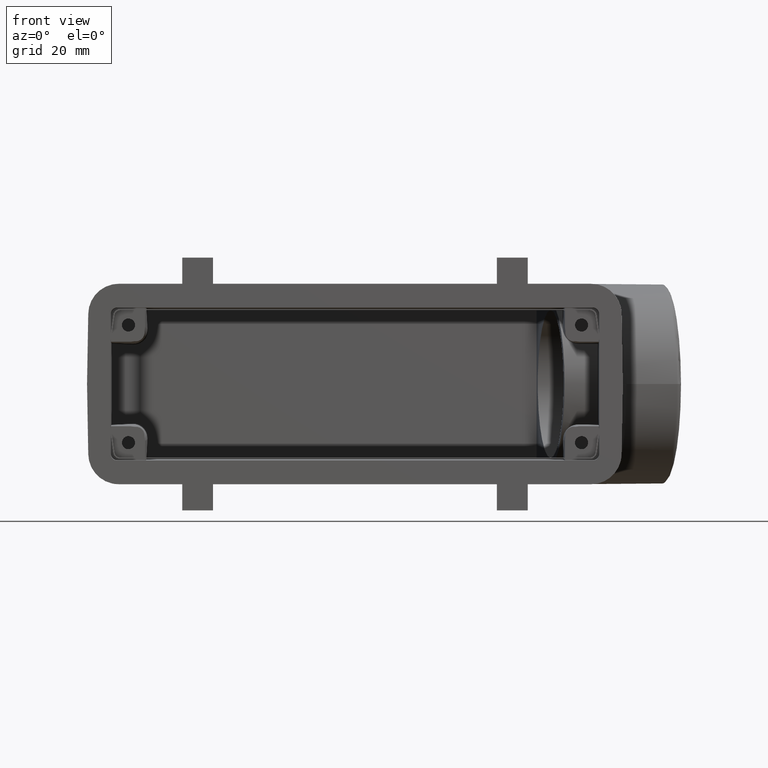
[diagram: clean part render]
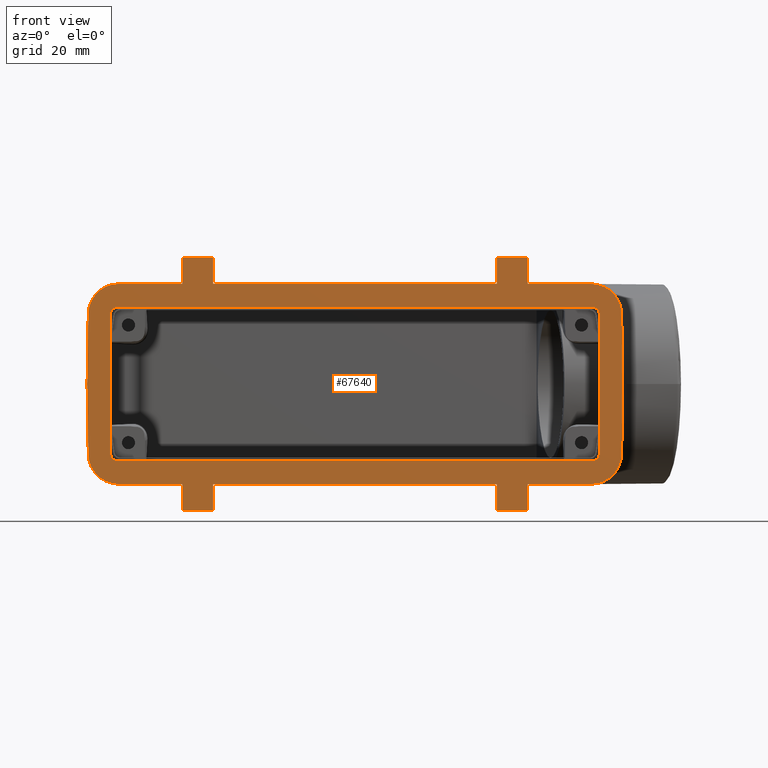
[diagram: same view with one face highlighted and labeled with its STEP entity id]
A machine part, front view. The second image highlights one B-rep face of the part: STEP entity #67640.
In plain terms, the highlighted planar face has unit normal (0, -1, 0).
Its self-contained STEP definition (entity closure, byte-faithful):
#8580=CARTESIAN_POINT('',(58.4720845133749,24.1117412440545,
16.122166845061));
#8590=VERTEX_POINT('',#8580);
#8760=CARTESIAN_POINT('',(58.753497982439,24.1117412440545,
4.20462067438672E-13));
#8770=VERTEX_POINT('',#8760);
#8800=CARTESIAN_POINT('',(58.753497982439,24.1117412440545,0.));
#8810=DIRECTION('',(-0.0174524064372835,0.,0.999847695156391));
#8820=VECTOR('',#8810,1.);
#8830=LINE('',#8800,#8820);
#8840=EDGE_CURVE('',#8770,#8590,#8830,.T.);
#10190=CARTESIAN_POINT('',(53.3275773240349,24.1117412440545,
16.0741364569997));
#10200=VERTEX_POINT('',#10190);
#10230=CARTESIAN_POINT('',(53.3275773240349,24.1117412440545,0.));
#10240=DIRECTION('',(-1.06873307065347E-18,0.,-1.));
#10250=VECTOR('',#10240,1.);
#10260=LINE('',#10230,#10250);
#10270=CARTESIAN_POINT('',(53.3275773240349,24.1117412440545,
-16.0741364569997));
#10280=VERTEX_POINT('',#10270);
#10290=EDGE_CURVE('',#10200,#10280,#10260,.T.);
#11820=CARTESIAN_POINT('',(-35.3355784279219,24.1117412440545,0.));
#11830=DIRECTION('',(-0.,0.,-1.));
#11840=VECTOR('',#11830,1.);
#11850=LINE('',#11820,#11840);
#11860=CARTESIAN_POINT('',(-35.3355784279219,24.1117412440545,-23.));
#11870=VERTEX_POINT('',#11860);
#11880=CARTESIAN_POINT('',(-35.3355784279219,24.1117412440545,-29.));
#11890=VERTEX_POINT('',#11880);
#11900=EDGE_CURVE('',#11870,#11890,#11850,.T.);
#12350=CARTESIAN_POINT('',(-64.246502017561,24.1117412440545,
-5.14730234735774E-13));
#12360=VERTEX_POINT('',#12350);
#13310=CARTESIAN_POINT('',(-63.9650885484969,24.1117412440545,
16.122166845061));
#13320=VERTEX_POINT('',#13310);
#13350=CARTESIAN_POINT('',(-64.246502017561,24.1117412440545,0.));
#13360=DIRECTION('',(0.0174524064372835,0.,0.999847695156391));
#13370=VECTOR('',#13360,1.);
#13380=LINE('',#13350,#13370);
#13390=EDGE_CURVE('',#12360,#13320,#13380,.T.);
#27540=CARTESIAN_POINT('',(-57.3206384745607,24.1117412440545,
-17.574079341596));
#27550=VERTEX_POINT('',#27540);
#27580=CARTESIAN_POINT('',(-57.3205242415783,24.1117412440545,
-16.0740222240174));
#27590=DIRECTION('',(-0.,-1.,-0.));
#27600=DIRECTION('',(-0.707106781185974,0.,-0.707106781187121));
#27610=AXIS2_PLACEMENT_3D('',#27580,#27590,#27600);
#27620=ELLIPSE('',#27610,1.50011423298243,1.5);
#27630=CARTESIAN_POINT('',(-58.8205813591569,24.1117412440545,
-16.0741364569997));
#27640=VERTEX_POINT('',#27630);
#27650=EDGE_CURVE('',#27640,#27550,#27620,.T.);
#29320=CARTESIAN_POINT('',(29.8425743927999,24.1117412440545,-23.));
#29330=VERTEX_POINT('',#29320);
#29360=CARTESIAN_POINT('',(29.8425743927999,24.1117412440545,0.));
#29370=DIRECTION('',(0.,0.,1.));
#29380=VECTOR('',#29370,1.);
#29390=LINE('',#29360,#29380);
#29400=CARTESIAN_POINT('',(29.8425743927999,24.1117412440545,-29.));
#29410=VERTEX_POINT('',#29400);
#29420=EDGE_CURVE('',#29410,#29330,#29390,.T.);
#29660=CARTESIAN_POINT('',(-64.246502017561,24.1117412440545,0.));
#29670=DIRECTION('',(0.0174524064372835,0.,-0.999847695156391));
#29680=VECTOR('',#29670,1.);
#29690=LINE('',#29660,#29680);
#29700=CARTESIAN_POINT('',(-63.9650885484969,24.1117412440545,
-16.122166845061));
#29710=VERTEX_POINT('',#29700);
#29720=EDGE_CURVE('',#12360,#29710,#29690,.T.);
#36230=CARTESIAN_POINT('',(58.753497982439,24.1117412440545,0.));
#36240=DIRECTION('',(-0.0174524064372835,0.,-0.999847695156391));
#36250=VECTOR('',#36240,1.);
#36260=LINE('',#36230,#36250);
#36270=CARTESIAN_POINT('',(58.4720845133749,24.1117412440545,
-16.122166845061));
#36280=VERTEX_POINT('',#36270);
#36290=EDGE_CURVE('',#8770,#36280,#36260,.T.);
#46250=CARTESIAN_POINT('',(-56.9661546824022,24.1117412440545,23.));
#46260=VERTEX_POINT('',#46250);
#46290=CARTESIAN_POINT('',(-56.9661546824022,24.1117412440545,16.));
#46300=DIRECTION('',(0.,-1.,2.44929359829471E-16));
#46310=DIRECTION('',(1.,-3.67335203465356E-48,-1.49975978266186E-32));
#46320=AXIS2_PLACEMENT_3D('',#46290,#46300,#46310);
#46330=CIRCLE('',#46320,7.);
#46340=EDGE_CURVE('',#46260,#13320,#46330,.T.);
#52520=CARTESIAN_POINT('',(29.8425743927999,24.1117412440545,23.));
#52530=VERTEX_POINT('',#52520);
#52560=CARTESIAN_POINT('',(45.6034979824379,24.1117412440545,23.));
#52570=DIRECTION('',(1.,0.,-0.));
#52580=VECTOR('',#52570,1.);
#52590=LINE('',#52560,#52580);
#52600=CARTESIAN_POINT('',(-35.3355784279219,24.1117412440545,23.));
#52610=VERTEX_POINT('',#52600);
#52620=EDGE_CURVE('',#52610,#52530,#52590,.T.);
#52750=CARTESIAN_POINT('',(-42.396502017561,24.1117412440545,23.));
#52760=VERTEX_POINT('',#52750);
#52790=EDGE_CURVE('',#46260,#52760,#52590,.T.);
#53040=CARTESIAN_POINT('',(51.4731506472802,24.1117412440545,23.));
#53050=VERTEX_POINT('',#53040);
#53080=CARTESIAN_POINT('',(36.903497982439,24.1117412440545,23.));
#53090=VERTEX_POINT('',#53080);
#53100=EDGE_CURVE('',#53090,#53050,#52590,.T.);
#59470=CARTESIAN_POINT('',(36.903497982439,24.1117412440545,-23.));
#59480=VERTEX_POINT('',#59470);
#59560=CARTESIAN_POINT('',(36.903497982439,24.1117412440545,-29.));
#59570=VERTEX_POINT('',#59560);
#59600=CARTESIAN_POINT('',(36.903497982439,24.1117412440545,0.));
#59610=DIRECTION('',(0.,0.,-1.));
#59620=VECTOR('',#59610,1.);
#59630=LINE('',#59600,#59620);
#59640=EDGE_CURVE('',#59480,#59570,#59630,.T.);
#59870=CARTESIAN_POINT('',(-57.3206384745607,24.1117412440545,
17.5740793415959));
#59880=VERTEX_POINT('',#59870);
#60040=CARTESIAN_POINT('',(-58.8205813591569,24.1117412440545,
16.0741364569997));
#60050=VERTEX_POINT('',#60040);
#60080=CARTESIAN_POINT('',(-57.3205242415783,24.1117412440545,
16.0740222240173));
#60090=DIRECTION('',(-0.,-1.,-0.));
#60100=DIRECTION('',(0.707106781185979,0.,-0.707106781187116));
#60110=AXIS2_PLACEMENT_3D('',#60080,#60090,#60100);
#60120=ELLIPSE('',#60110,1.50011423298243,1.5);
#60130=EDGE_CURVE('',#59880,#60050,#60120,.T.);
#60320=CARTESIAN_POINT('',(45.6034979824379,24.1117412440545,-29.));
#60330=DIRECTION('',(-1.,0.,-0.));
#60340=VECTOR('',#60330,1.);
#60350=LINE('',#60320,#60340);
#60360=EDGE_CURVE('',#59570,#29410,#60350,.T.);
#65560=CARTESIAN_POINT('',(45.6034979824379,24.1117412440545,-23.));
#65570=DIRECTION('',(1.,0.,0.));
#65580=VECTOR('',#65570,1.);
#65590=LINE('',#65560,#65580);
#65600=EDGE_CURVE('',#11870,#29330,#65590,.T.);
#65650=CARTESIAN_POINT('',(51.4731506472802,24.1117412440545,-23.));
#65660=VERTEX_POINT('',#65650);
#65670=EDGE_CURVE('',#59480,#65660,#65590,.T.);
#65980=CARTESIAN_POINT('',(-56.9661546824022,24.1117412440545,-23.));
#65990=VERTEX_POINT('',#65980);
#66020=CARTESIAN_POINT('',(-42.396502017561,24.1117412440545,-23.));
#66030=VERTEX_POINT('',#66020);
#66040=EDGE_CURVE('',#65990,#66030,#65590,.T.);
#66220=CARTESIAN_POINT('',(-38.8660402227414,24.1117412440545,-26.));
#66230=DIRECTION('',(-0.,-1.,-0.));
#66240=DIRECTION('',(-1.,0.,0.));
#66250=AXIS2_PLACEMENT_3D('',#66220,#66230,#66240);
#66260=PLANE('',#66250);
#66270=CARTESIAN_POINT('',(45.6034979824379,24.1117412440545,
-17.574079341596));
#66280=DIRECTION('',(-1.,0.,-1.06873307065349E-18));
#66290=VECTOR('',#66280,1.);
#66300=LINE('',#66270,#66290);
#66310=CARTESIAN_POINT('',(51.8276344394387,24.1117412440545,
-17.574079341596));
#66320=VERTEX_POINT('',#66310);
#66330=EDGE_CURVE('',#66320,#27550,#66300,.T.);
#66340=ORIENTED_EDGE('',*,*,#66330,.T.);
#66350=CARTESIAN_POINT('',(51.8275202064563,24.1117412440545,
-16.0740222240173));
#66360=DIRECTION('',(-0.,-1.,-0.));
#66370=DIRECTION('',(0.707106781185959,0.,-0.707106781187136));
#66380=AXIS2_PLACEMENT_3D('',#66350,#66360,#66370);
#66390=ELLIPSE('',#66380,1.50011423298243,1.5);
#66400=EDGE_CURVE('',#66320,#10280,#66390,.T.);
#66410=ORIENTED_EDGE('',*,*,#66400,.F.);
#66420=ORIENTED_EDGE('',*,*,#10290,.T.);
#66430=CARTESIAN_POINT('',(51.8275202064563,24.1117412440545,
16.0740222240173));
#66440=DIRECTION('',(-0.,-1.,-0.));
#66450=DIRECTION('',(-0.707106781185974,0.,-0.707106781187121));
#66460=AXIS2_PLACEMENT_3D('',#66430,#66440,#66450);
#66470=ELLIPSE('',#66460,1.50011423298243,1.5);
#66480=CARTESIAN_POINT('',(51.8276344394387,24.1117412440545,
17.5740793415959));
#66490=VERTEX_POINT('',#66480);
#66500=EDGE_CURVE('',#10200,#66490,#66470,.T.);
#66510=ORIENTED_EDGE('',*,*,#66500,.F.);
#66520=CARTESIAN_POINT('',(45.6034979824379,24.1117412440545,
17.5740793415959));
#66530=DIRECTION('',(-1.,0.,1.49975978266186E-32));
#66540=VECTOR('',#66530,1.);
#66550=LINE('',#66520,#66540);
#66560=EDGE_CURVE('',#66490,#59880,#66550,.T.);
#66570=ORIENTED_EDGE('',*,*,#66560,.F.);
#66580=ORIENTED_EDGE('',*,*,#60130,.F.);
#66590=CARTESIAN_POINT('',(-58.8205813591569,24.1117412440545,0.));
#66600=DIRECTION('',(0.,0.,1.));
#66610=VECTOR('',#66600,1.);
#66620=LINE('',#66590,#66610);
#66630=EDGE_CURVE('',#27640,#60050,#66620,.T.);
#66640=ORIENTED_EDGE('',*,*,#66630,.T.);
#66650=ORIENTED_EDGE('',*,*,#27650,.F.);
#66660=EDGE_LOOP('',(#66650,#66640,#66580,#66570,#66510,#66420,#66410,
#66340));
#66670=FACE_BOUND('',#66660,.T.);
#66680=CARTESIAN_POINT('',(51.4731506472802,24.1117412440545,16.));
#66690=DIRECTION('',(-2.13762893932512E-18,-1.,2.44929359829471E-16));
#66700=DIRECTION('',(1.,-2.13762893932512E-18,-1.44740297389567E-32));
#66710=AXIS2_PLACEMENT_3D('',#66680,#66690,#66700);
#66720=CIRCLE('',#66710,7.);
#66730=EDGE_CURVE('',#8590,#53050,#66720,.T.);
#66740=ORIENTED_EDGE('',*,*,#66730,.T.);
#66750=ORIENTED_EDGE('',*,*,#8840,.T.);
#66760=ORIENTED_EDGE('',*,*,#36290,.F.);
#66770=CARTESIAN_POINT('',(51.4731506472802,24.1117412440545,-16.));
#66780=DIRECTION('',(1.2460230885406E-16,1.,0.));
#66790=DIRECTION('',(1.,-1.2460230885406E-16,0.));
#66800=AXIS2_PLACEMENT_3D('',#66770,#66780,#66790);
#66810=CIRCLE('',#66800,7.);
#66820=EDGE_CURVE('',#36280,#65660,#66810,.T.);
#66830=ORIENTED_EDGE('',*,*,#66820,.F.);
#66840=ORIENTED_EDGE('',*,*,#65670,.T.);
#66850=ORIENTED_EDGE('',*,*,#59640,.F.);
#66860=ORIENTED_EDGE('',*,*,#60360,.F.);
#66870=ORIENTED_EDGE('',*,*,#29420,.F.);
#66880=ORIENTED_EDGE('',*,*,#65600,.T.);
#66890=ORIENTED_EDGE('',*,*,#11900,.F.);
#66900=CARTESIAN_POINT('',(45.6034979824379,24.1117412440545,-29.));
#66910=DIRECTION('',(-1.,0.,-0.));
#66920=VECTOR('',#66910,1.);
#66930=LINE('',#66900,#66920);
#66940=CARTESIAN_POINT('',(-42.396502017561,24.1117412440545,-29.));
#66950=VERTEX_POINT('',#66940);
#66960=EDGE_CURVE('',#11890,#66950,#66930,.T.);
#66970=ORIENTED_EDGE('',*,*,#66960,.F.);
#66980=CARTESIAN_POINT('',(-42.396502017561,24.1117412440545,0.));
#66990=DIRECTION('',(0.,0.,1.));
#67000=VECTOR('',#66990,1.);
#67010=LINE('',#66980,#67000);
#67020=EDGE_CURVE('',#66950,#66030,#67010,.T.);
#67030=ORIENTED_EDGE('',*,*,#67020,.F.);
#67040=ORIENTED_EDGE('',*,*,#66040,.T.);
#67050=CARTESIAN_POINT('',(-56.9661546824022,24.1117412440545,-16.));
#67060=DIRECTION('',(1.22464679914735E-16,1.,0.));
#67070=DIRECTION('',(1.,-1.22464679914735E-16,0.));
#67080=AXIS2_PLACEMENT_3D('',#67050,#67060,#67070);
#67090=CIRCLE('',#67080,7.);
#67100=EDGE_CURVE('',#65990,#29710,#67090,.T.);
#67110=ORIENTED_EDGE('',*,*,#67100,.F.);
#67120=ORIENTED_EDGE('',*,*,#29720,.T.);
#67130=ORIENTED_EDGE('',*,*,#13390,.F.);
#67140=ORIENTED_EDGE('',*,*,#46340,.T.);
#67150=ORIENTED_EDGE('',*,*,#52790,.F.);
#67160=CARTESIAN_POINT('',(-42.396502017561,24.1117412440545,0.));
#67170=DIRECTION('',(0.,0.,1.));
#67180=VECTOR('',#67170,1.);
#67190=LINE('',#67160,#67180);
#67200=CARTESIAN_POINT('',(-42.396502017561,24.1117412440545,29.));
#67210=VERTEX_POINT('',#67200);
#67220=EDGE_CURVE('',#52760,#67210,#67190,.T.);
#67230=ORIENTED_EDGE('',*,*,#67220,.F.);
#67240=CARTESIAN_POINT('',(45.6034979824379,24.1117412440545,29.));
#67250=DIRECTION('',(-1.,0.,-0.));
#67260=VECTOR('',#67250,1.);
#67270=LINE('',#67240,#67260);
#67280=CARTESIAN_POINT('',(-35.3355784279219,24.1117412440545,29.));
#67290=VERTEX_POINT('',#67280);
#67300=EDGE_CURVE('',#67290,#67210,#67270,.T.);
#67310=ORIENTED_EDGE('',*,*,#67300,.T.);
#67320=CARTESIAN_POINT('',(-35.3355784279219,24.1117412440545,0.));
#67330=DIRECTION('',(-0.,0.,-1.));
#67340=VECTOR('',#67330,1.);
#67350=LINE('',#67320,#67340);
#67360=EDGE_CURVE('',#67290,#52610,#67350,.T.);
#67370=ORIENTED_EDGE('',*,*,#67360,.F.);
#67380=ORIENTED_EDGE('',*,*,#52620,.F.);
#67390=CARTESIAN_POINT('',(29.8425743927999,24.1117412440545,0.));
#67400=DIRECTION('',(0.,0.,1.));
#67410=VECTOR('',#67400,1.);
#67420=LINE('',#67390,#67410);
#67430=CARTESIAN_POINT('',(29.8425743927999,24.1117412440545,29.));
#67440=VERTEX_POINT('',#67430);
#67450=EDGE_CURVE('',#52530,#67440,#67420,.T.);
#67460=ORIENTED_EDGE('',*,*,#67450,.F.);
#67470=CARTESIAN_POINT('',(45.6034979824379,24.1117412440545,29.));
#67480=DIRECTION('',(-1.,0.,-0.));
#67490=VECTOR('',#67480,1.);
#67500=LINE('',#67470,#67490);
#67510=CARTESIAN_POINT('',(36.903497982439,24.1117412440545,29.));
#67520=VERTEX_POINT('',#67510);
#67530=EDGE_CURVE('',#67520,#67440,#67500,.T.);
#67540=ORIENTED_EDGE('',*,*,#67530,.T.);
#67550=CARTESIAN_POINT('',(36.903497982439,24.1117412440545,0.));
#67560=DIRECTION('',(0.,0.,-1.));
#67570=VECTOR('',#67560,1.);
#67580=LINE('',#67550,#67570);
#67590=EDGE_CURVE('',#67520,#53090,#67580,.T.);
#67600=ORIENTED_EDGE('',*,*,#67590,.F.);
#67610=ORIENTED_EDGE('',*,*,#53100,.F.);
#67620=EDGE_LOOP('',(#67610,#67600,#67540,#67460,#67380,#67370,#67310,
#67230,#67150,#67140,#67130,#67120,#67110,#67040,#67030,#66970,#66890,
#66880,#66870,#66860,#66850,#66840,#66830,#66760,#66750,#66740));
#67630=FACE_OUTER_BOUND('',#67620,.T.);
#67640=ADVANCED_FACE('',(#66670,#67630),#66260,.T.);